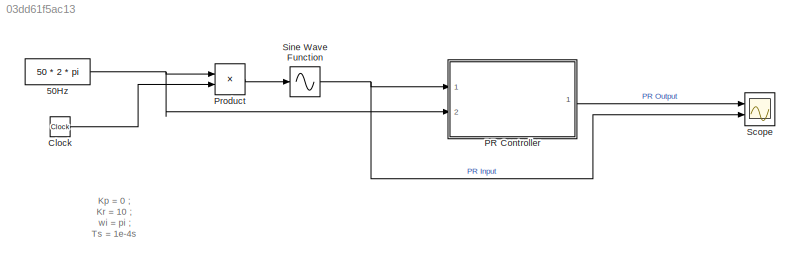
MODEL slx_03dd61f5ac13
KIND model
CONFIG AbsTol = auto
CONFIG EnableMultiTasking = off
CONFIG FixedStep = auto
CONFIG InitFcn = Ts_Control = 1e-4;\nKp = 0 ;\nKr = 10 ;\nwi = pi ;
CONFIG MaxStep = auto
CONFIG MinStep = auto
CONFIG RelTol = 1e-3
CONFIG SampleTimeConstraint = Unconstrained
CONFIG Solver = VariableStepAuto
CONFIG SolverName = VariableStepAuto
CONFIG StartTime = 0.0
CONFIG StopTime = 1.5
BLOCK [Constant] 50Hz
  Value = 50 * 2 * pi
BLOCK [Clock] Clock
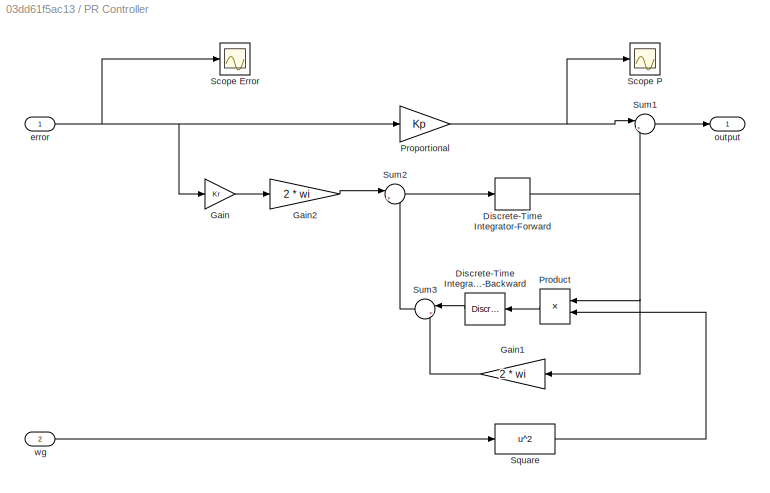
BLOCK [SubSystem] PR Controller
  Ports = [2, 1]
  RequestExecContextInheritance = off
  Variant = off
BLOCK [DiscreteIntegrator] PR Controller/Discrete-Time Integrator-Backward
  ICPrevOutput = DiscIntNeverNeededParam
  ICPrevScaledInput = DiscIntNeverNeededParam
  InitialConditionSetting = State (most efficient)
  IntegratorMethod = Integration: Backward Euler
  Ports = [1, 1]
  SampleTime = Ts_Control
BLOCK [DiscreteIntegrator] PR Controller/Discrete-Time Integrator-Forward
  ICPrevOutput = DiscIntNeverNeededParam
  ICPrevScaledInput = DiscIntNeverNeededParam
  InitialConditionSetting = State (most efficient)
  Ports = [1, 1]
  SampleTime = Ts_Control
BLOCK [Gain] PR Controller/Gain
  Gain = Kr
  OutDataTypeStr = Inherit: Inherit via internal rule
  ParamDataTypeStr = Inherit: Inherit via internal rule
  SaturateOnIntegerOverflow = off
BLOCK [Gain] PR Controller/Gain1
  Gain = 2 * wi
  OutDataTypeStr = Inherit: Inherit via internal rule
  ParamDataTypeStr = Inherit: Inherit via internal rule
  SaturateOnIntegerOverflow = off
BLOCK [Gain] PR Controller/Gain2
  Gain = 2 * wi
  OutDataTypeStr = Inherit: Inherit via internal rule
  ParamDataTypeStr = Inherit: Inherit via internal rule
  SaturateOnIntegerOverflow = off
BLOCK [Product] PR Controller/Product
  InputSameDT = off
  OutDataTypeStr = Inherit: Inherit via internal rule
  Ports = [2, 1]
  RndMeth = Floor
  SaturateOnIntegerOverflow = off
BLOCK [Gain] PR Controller/Proportional
  Gain = Kp
  OutDataTypeStr = Inherit: Inherit via internal rule
  ParamDataTypeStr = Inherit: Inherit via internal rule
  SaturateOnIntegerOverflow = off
BLOCK [Scope] PR Controller/Scope Error
  NumInputPorts = 1
  Ports = [1]
  ScopeSpecificationString = Simulink.scopes.TimeScopeBlockCfg('CurrentConfiguration', extmgr.ConfigurationSet(extmgr.Configuration('Core','General UI',true),extmgr.Configuration('Core','Source UI',true),extmgr.Configuration('Sources','WiredSimulink',true,'DataLoggingVariableName','ScopeData1'),extmgr.Configuration('Visuals','Time Domain',true,'SerializedDisplays',{struct('MinYLimReal','-37.58454','MaxYLimReal','37.66479','YL...<+1370ch>
BLOCK [Scope] PR Controller/Scope P
  NumInputPorts = 1
  Ports = [1]
  ScopeSpecificationString = Simulink.scopes.TimeScopeBlockCfg('CurrentConfiguration', extmgr.ConfigurationSet(extmgr.Configuration('Core','General UI',true),extmgr.Configuration('Core','Source UI',true),extmgr.Configuration('Sources','WiredSimulink',true,'DataLoggingVariableName','ScopeData2'),extmgr.Configuration('Visuals','Time Domain',true,'SerializedDisplays',{struct('MinYLimReal','-13.06655','MaxYLimReal','12.98138','YL...<+1449ch>
BLOCK [Fcn] PR Controller/Square
  Expr = u^2
BLOCK [Sum] PR Controller/Sum1
  IconShape = round
  InputSameDT = off
  Inputs = |++
  OutDataTypeStr = Inherit: Inherit via internal rule
  Ports = [2, 1]
  SaturateOnIntegerOverflow = off
BLOCK [Sum] PR Controller/Sum2
  IconShape = round
  InputSameDT = off
  Inputs = |+-
  OutDataTypeStr = Inherit: Inherit via internal rule
  Ports = [2, 1]
  SaturateOnIntegerOverflow = off
BLOCK [Sum] PR Controller/Sum3
  IconShape = round
  InputSameDT = off
  Inputs = |++
  OutDataTypeStr = Inherit: Inherit via internal rule
  Ports = [2, 1]
  SaturateOnIntegerOverflow = off
BLOCK [Inport] PR Controller/error
  IconDisplay = Port number
BLOCK [Outport] PR Controller/output
  IconDisplay = Port number
BLOCK [Inport] PR Controller/wg
  IconDisplay = Port number
  Port = 2
BLOCK [Product] Product
  InputSameDT = off
  OutDataTypeStr = Inherit: Inherit via internal rule
  Ports = [2, 1]
  RndMeth = Floor
  SaturateOnIntegerOverflow = off
BLOCK [Scope] Scope
  NumInputPorts = 2
  Ports = [2]
  ScopeSpecificationString = Simulink.scopes.TimeScopeBlockCfg('CurrentConfiguration', extmgr.ConfigurationSet(extmgr.Configuration('Core','General UI',true),extmgr.Configuration('Core','Source UI',true),extmgr.Configuration('Sources','WiredSimulink',true,'DataLoggingVariableName','ScopeData1'),extmgr.Configuration('Visuals','Time Domain',true,'SerializedDisplays',{struct('MinYLimReal','-10.4813','MaxYLimReal','10.74645','YLa...<+1455ch>
BLOCK [Sin] Sine Wave Function
  Ports = [1, 1]
  SampleTime = 0
  TimeSource = Use external signal
ANNOTATION (root): Kp = 0 ; Kr = 10 ; wi = pi ; Ts = 1e-4s
NET 50Hz:1 -> PR Controller:2, Product:1
LINE Clock:1 -> Product:2
LINE PR Controller/Discrete-Time Integrator-Backward:1 -> PR Controller/Sum3:1
NET PR Controller/Discrete-Time Integrator-Forward:1 -> PR Controller/Gain1:1, PR Controller/Product:1, PR Controller/Sum1:2
LINE PR Controller/Gain1:1 -> PR Controller/Sum3:2
LINE PR Controller/Gain2:1 -> PR Controller/Sum2:1
LINE PR Controller/Gain:1 -> PR Controller/Gain2:1
LINE PR Controller/Product:1 -> PR Controller/Discrete-Time Integrator-Backward:1
NET PR Controller/Proportional:1 -> PR Controller/Scope P:1, PR Controller/Sum1:1
LINE PR Controller/Square:1 -> PR Controller/Product:2
LINE PR Controller/Sum1:1 -> PR Controller/output:1
LINE PR Controller/Sum2:1 -> PR Controller/Discrete-Time Integrator-Forward:1
LINE PR Controller/Sum3:1 -> PR Controller/Sum2:2
NET PR Controller/error:1 -> PR Controller/Gain:1, PR Controller/Proportional:1, PR Controller/Scope Error:1
LINE PR Controller/wg:1 -> PR Controller/Square:1
LINE PR Controller:1 -> Scope:1
LINE Product:1 -> Sine Wave Function:1
NET Sine Wave Function:1 -> PR Controller:1, Scope:2
note: NET lines group one-source signal fan-out (src -> all destinations, sorted); 1:1 wires keep LINE
